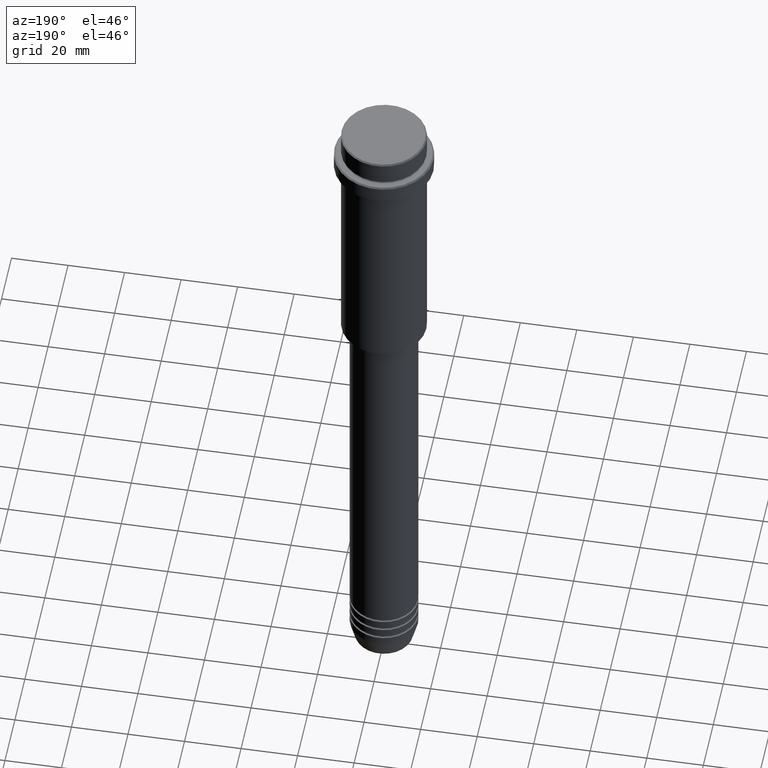
[diagram: clean part render]
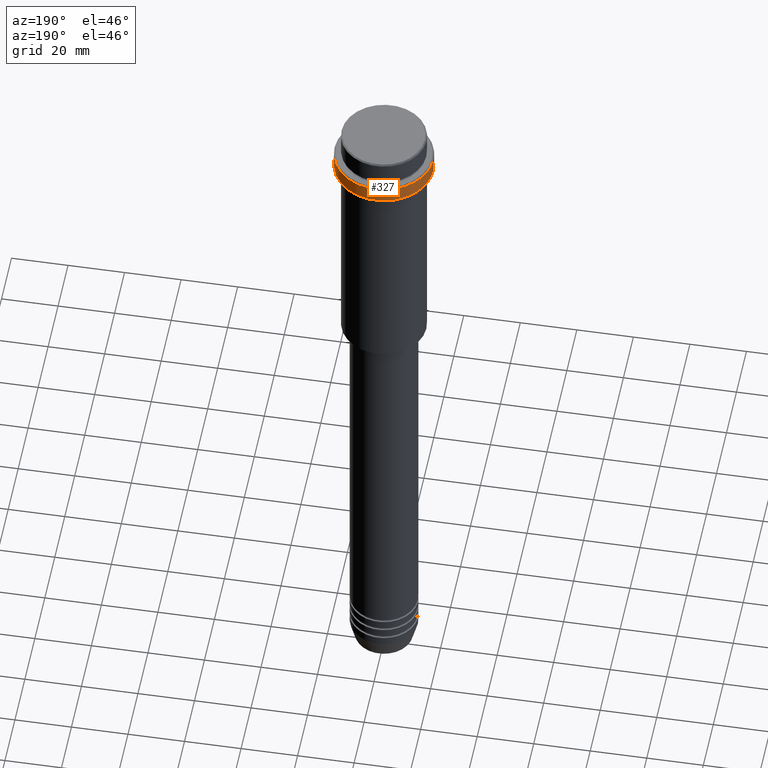
[diagram: same view with one face highlighted and labeled with its STEP entity id]
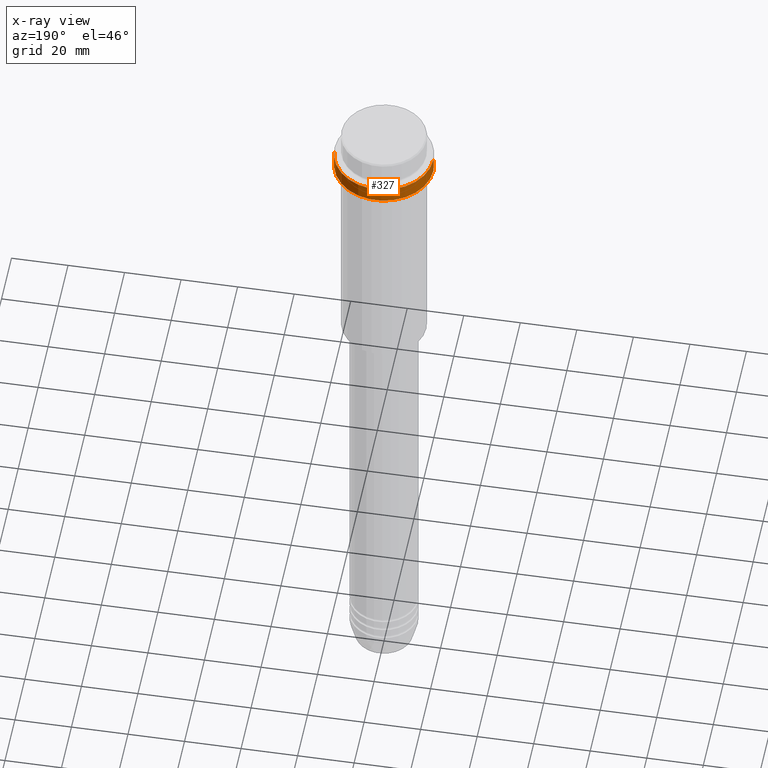
[diagram: x-ray of the same camera — body ghosted, the highlighted face saturated]
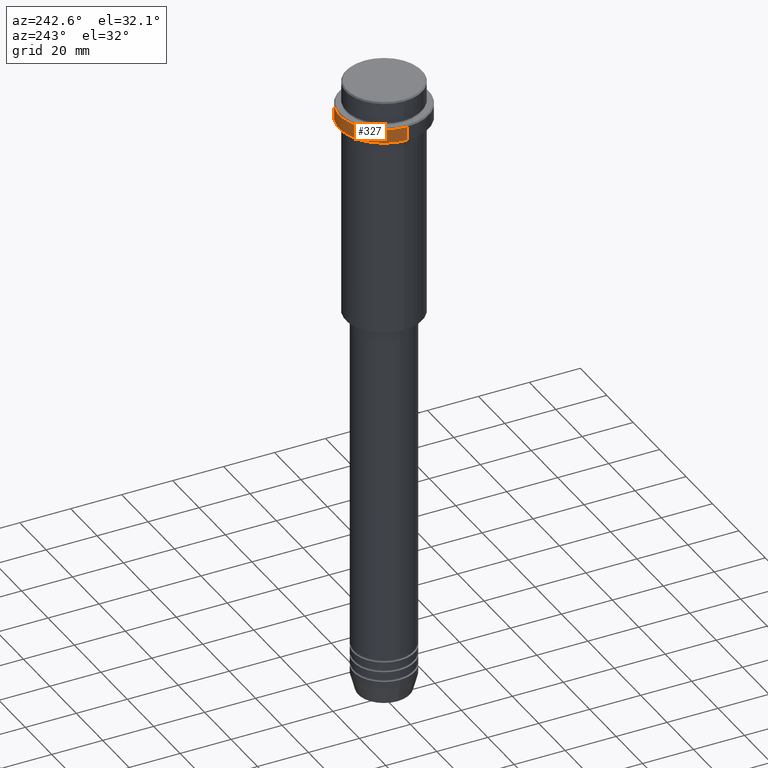
[diagram: same view with one face highlighted and labeled with its STEP entity id]
A machine part, auxiliary view. The second image highlights one B-rep face of the part: STEP entity #327.
The next image is the same camera in x-ray: the body ghosted, the highlighted face saturated — about 0% of this face is hidden behind the body in this view.
A second angle (auxiliary view) of the same face is appended — the face is thin or edge-on in the first view.
In plain terms, the highlighted cylindrical surface (partial cylindrical patch) has radius 17.5 mm, axis along (-0, -0, 1).
Its self-contained STEP definition (entity closure, byte-faithful):
#69 = FACE_OUTER_BOUND ( 'NONE', #571, .T. ) ;
#102 = EDGE_CURVE ( 'NONE', #302, #1308, #529, .T. ) ;
#140 = EDGE_CURVE ( 'NONE', #1308, #152, #1065, .T. ) ;
#152 = VERTEX_POINT ( 'NONE', #644 ) ;
#164 = ORIENTED_EDGE ( 'NONE', *, *, #1340, .F. ) ;
#190 = CYLINDRICAL_SURFACE ( 'NONE', #784, 17.50000000000000000 ) ;
#195 = CARTESIAN_POINT ( 'NONE',  ( 0.000000000000000000, 0.000000000000000000, 0.000000000000000000 ) ) ;
#203 = DIRECTION ( 'NONE',  ( 1.000000000000000000, 0.000000000000000000, 0.000000000000000000 ) ) ;
#302 = VERTEX_POINT ( 'NONE', #1386 ) ;
#327 = ADVANCED_FACE ( 'NONE', ( #69 ), #190, .T. ) ;
#383 = EDGE_CURVE ( 'NONE', #597, #302, #393, .T. ) ;
#389 = DIRECTION ( 'NONE',  ( -0.000000000000000000, -0.000000000000000000, 1.000000000000000000 ) ) ;
#393 = CIRCLE ( 'NONE', #767, 17.50000000000000000 ) ;
#399 = VECTOR ( 'NONE', #1320, 1000.000000000000000 ) ;
#402 = CARTESIAN_POINT ( 'NONE',  ( 0.000000000000000000, 0.000000000000000000, -9.499999999999973355 ) ) ;
#529 = LINE ( 'NONE', #1391, #1134 ) ;
#571 = EDGE_LOOP ( 'NONE', ( #955, #723, #1247, #164 ) ) ;
#597 = VERTEX_POINT ( 'NONE', #668 ) ;
#644 = CARTESIAN_POINT ( 'NONE',  ( 17.50000000000000000, 0.000000000000000000, -9.499999999999973355 ) ) ;
#668 = CARTESIAN_POINT ( 'NONE',  ( 17.50000000000000000, 0.000000000000000000, -15.00000000000000178 ) ) ;
#708 = DIRECTION ( 'NONE',  ( 1.000000000000000000, 0.000000000000000000, 0.000000000000000000 ) ) ;
#723 = ORIENTED_EDGE ( 'NONE', *, *, #102, .T. ) ;
#753 = CARTESIAN_POINT ( 'NONE',  ( 17.50000000000000000, 0.000000000000000000, 0.000000000000000000 ) ) ;
#767 = AXIS2_PLACEMENT_3D ( 'NONE', #1051, #389, #708 ) ;
#784 = AXIS2_PLACEMENT_3D ( 'NONE', #195, #962, #954 ) ;
#831 = DIRECTION ( 'NONE',  ( 0.000000000000000000, 0.000000000000000000, -1.000000000000000000 ) ) ;
#954 = DIRECTION ( 'NONE',  ( 1.000000000000000000, 0.000000000000000000, 0.000000000000000000 ) ) ;
#955 = ORIENTED_EDGE ( 'NONE', *, *, #383, .T. ) ;
#962 = DIRECTION ( 'NONE',  ( -0.000000000000000000, -0.000000000000000000, 1.000000000000000000 ) ) ;
#1051 = CARTESIAN_POINT ( 'NONE',  ( 0.000000000000000000, 0.000000000000000000, -15.00000000000000178 ) ) ;
#1065 = CIRCLE ( 'NONE', #1360, 17.50000000000000000 ) ;
#1134 = VECTOR ( 'NONE', #1290, 1000.000000000000000 ) ;
#1163 = CARTESIAN_POINT ( 'NONE',  ( -17.50000000000000000, 2.143131898507868248E-15, -9.499999999999973355 ) ) ;
#1184 = LINE ( 'NONE', #753, #399 ) ;
#1247 = ORIENTED_EDGE ( 'NONE', *, *, #140, .T. ) ;
#1290 = DIRECTION ( 'NONE',  ( -0.000000000000000000, -0.000000000000000000, 1.000000000000000000 ) ) ;
#1308 = VERTEX_POINT ( 'NONE', #1163 ) ;
#1320 = DIRECTION ( 'NONE',  ( -0.000000000000000000, -0.000000000000000000, 1.000000000000000000 ) ) ;
#1340 = EDGE_CURVE ( 'NONE', #597, #152, #1184, .T. ) ;
#1360 = AXIS2_PLACEMENT_3D ( 'NONE', #402, #831, #203 ) ;
#1386 = CARTESIAN_POINT ( 'NONE',  ( -17.50000000000000000, 2.143131898507868248E-15, -15.00000000000000178 ) ) ;
#1391 = CARTESIAN_POINT ( 'NONE',  ( -17.50000000000000000, 2.143131898507868248E-15, 0.000000000000000000 ) ) ;